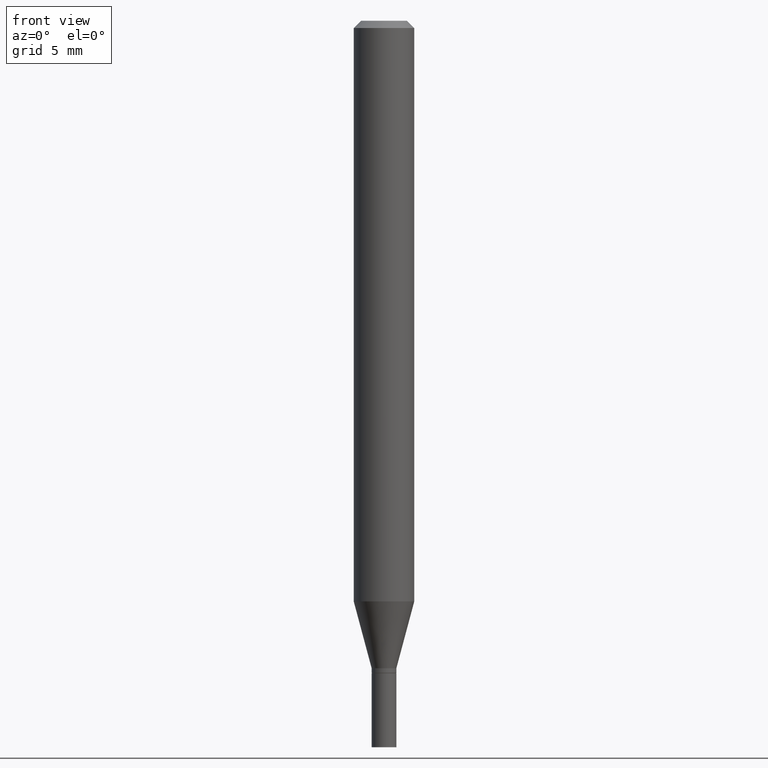
[diagram: clean part render]
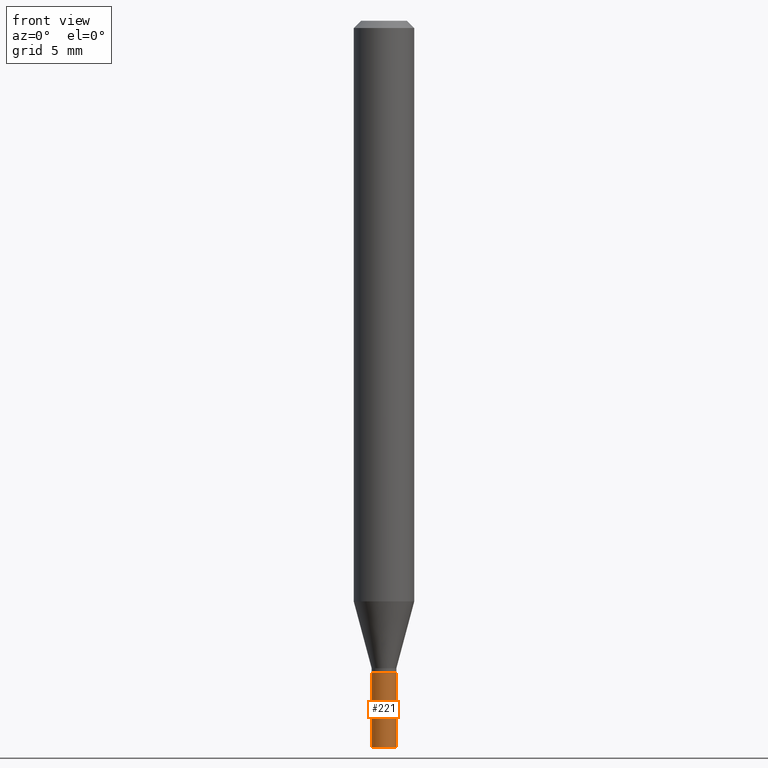
[diagram: same view with one face highlighted and labeled with its STEP entity id]
A machine part, front view. The second image highlights one B-rep face of the part: STEP entity #221.
In plain terms, the highlighted cylindrical surface (edge-blend (fillet) strip) has radius 0.6477 mm, axis along (-0, 0, 1).
Its self-contained STEP definition (entity closure, byte-faithful):
#1 = EDGE_LOOP ( 'NONE', ( #445, #239, #109, #463 ) ) ;
#5 = CARTESIAN_POINT ( 'NONE',  ( 3.294046481931379390E-29, -4.703025363421717574E-15, -1.347000000000000197 ) ) ;
#47 = VERTEX_POINT ( 'NONE', #279 ) ;
#89 = DIRECTION ( 'NONE',  ( -2.445468806185136877E-29, 3.491481338843145188E-15, 1.000000000000000000 ) ) ;
#93 = VECTOR ( 'NONE', #298, 39.37007874015748143 ) ;
#109 = ORIENTED_EDGE ( 'NONE', *, *, #230, .T. ) ;
#155 = CIRCLE ( 'NONE', #265, 0.02549999999999999836 ) ;
#162 = CARTESIAN_POINT ( 'NONE',  ( 0.000000000000000000, 0.000000000000000000, 0.000000000000000000 ) ) ;
#175 = VERTEX_POINT ( 'NONE', #327 ) ;
#195 = DIRECTION ( 'NONE',  ( 1.000000000000000000, -6.982962677686275388E-15, 0.000000000000000000 ) ) ;
#209 = EDGE_CURVE ( 'NONE', #175, #333, #155, .T. ) ;
#221 = ADVANCED_FACE ( 'NONE', ( #415 ), #319, .T. ) ;
#230 = EDGE_CURVE ( 'NONE', #333, #47, #423, .T. ) ;
#234 = DIRECTION ( 'NONE',  ( 1.000000000000000000, -6.982962677686266711E-15, 4.876176775795935793E-29 ) ) ;
#237 = CARTESIAN_POINT ( 'NONE',  ( 0.02549999999999999836, -1.780655482809997982E-16, 1.243425077827963501E-30 ) ) ;
#239 = ORIENTED_EDGE ( 'NONE', *, *, #209, .T. ) ;
#251 = VERTEX_POINT ( 'NONE', #376 ) ;
#260 = CARTESIAN_POINT ( 'NONE',  ( 0.02549999999999999836, -5.415287556545718640E-15, -1.500000000000000222 ) ) ;
#263 = DIRECTION ( 'NONE',  ( 1.000000000000000000, -6.982962677686275388E-15, 0.000000000000000000 ) ) ;
#265 = AXIS2_PLACEMENT_3D ( 'NONE', #378, #385, #195 ) ;
#279 = CARTESIAN_POINT ( 'NONE',  ( 0.02549999999999999836, -4.881090911702717249E-15, -1.347000000000000197 ) ) ;
#285 = AXIS2_PLACEMENT_3D ( 'NONE', #5, #301, #263 ) ;
#298 = DIRECTION ( 'NONE',  ( -2.445468806185136877E-29, 3.491481338843145188E-15, 1.000000000000000000 ) ) ;
#301 = DIRECTION ( 'NONE',  ( -2.445468806185136597E-29, 3.491481338843145583E-15, 1.000000000000000000 ) ) ;
#319 = CYLINDRICAL_SURFACE ( 'NONE', #403, 0.02549999999999999836 ) ;
#325 = VECTOR ( 'NONE', #89, 39.37007874015748143 ) ;
#327 = CARTESIAN_POINT ( 'NONE',  ( -0.02549999999999999836, -4.788935288224391773E-15, -1.500000000000000222 ) ) ;
#329 = CIRCLE ( 'NONE', #285, 0.02549999999999999836 ) ;
#333 = VERTEX_POINT ( 'NONE', #260 ) ;
#358 = DIRECTION ( 'NONE',  ( -2.445468806185136597E-29, 3.491481338843145583E-15, 1.000000000000000000 ) ) ;
#371 = CARTESIAN_POINT ( 'NONE',  ( -0.02549999999999999836, 1.811883976188255358E-16, -1.254328448015001021E-30 ) ) ;
#376 = CARTESIAN_POINT ( 'NONE',  ( -0.02549999999999999836, -4.788935288224391773E-15, -1.347000000000000197 ) ) ;
#378 = CARTESIAN_POINT ( 'NONE',  ( 3.668203209277704895E-29, -5.237222008264718177E-15, -1.500000000000000222 ) ) ;
#385 = DIRECTION ( 'NONE',  ( -2.445468806185136597E-29, 3.491481338843145583E-15, 1.000000000000000000 ) ) ;
#398 = LINE ( 'NONE', #371, #93 ) ;
#403 = AXIS2_PLACEMENT_3D ( 'NONE', #162, #358, #234 ) ;
#415 = FACE_OUTER_BOUND ( 'NONE', #1, .T. ) ;
#423 = LINE ( 'NONE', #237, #325 ) ;
#445 = ORIENTED_EDGE ( 'NONE', *, *, #446, .F. ) ;
#446 = EDGE_CURVE ( 'NONE', #175, #251, #398, .T. ) ;
#459 = EDGE_CURVE ( 'NONE', #251, #47, #329, .T. ) ;
#463 = ORIENTED_EDGE ( 'NONE', *, *, #459, .F. ) ;